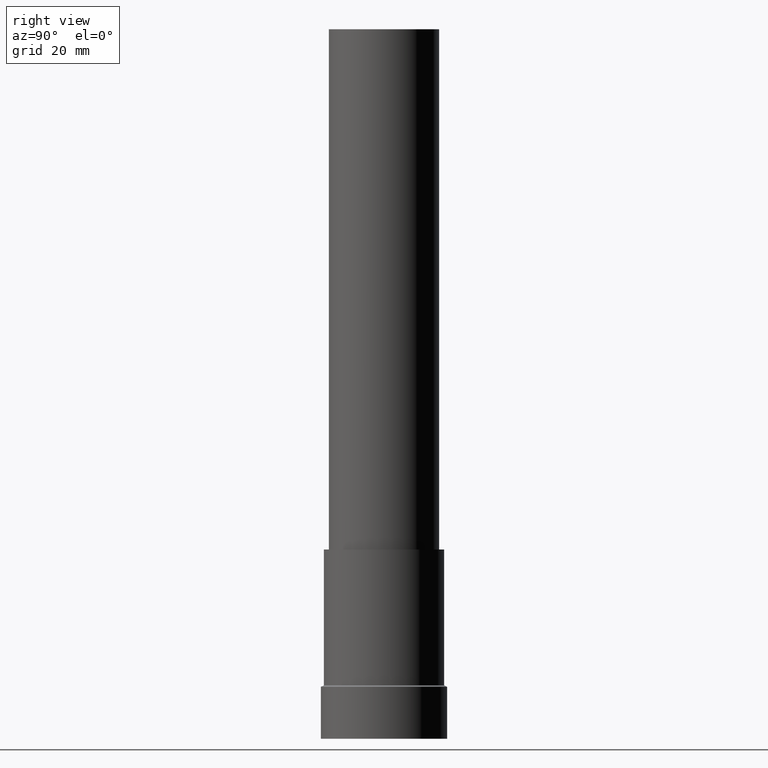
[diagram: clean part render]
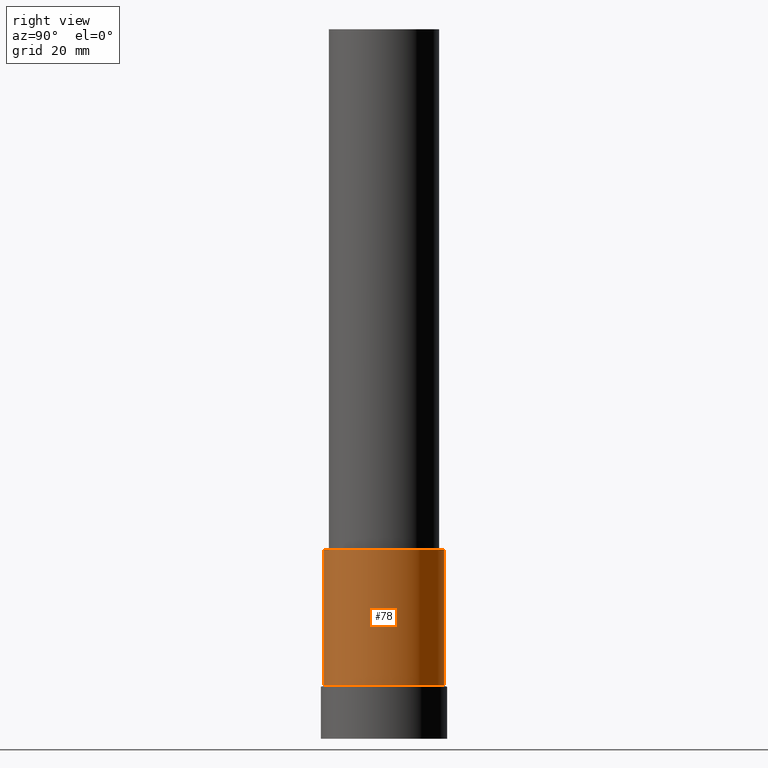
[diagram: same view with one face highlighted and labeled with its STEP entity id]
A machine part, right view. The second image highlights one B-rep face of the part: STEP entity #78.
In plain terms, the highlighted cylindrical surface (bore or boss wall) has radius 15.25 mm, axis along (0, 0, -1).
Its self-contained STEP definition (entity closure, byte-faithful):
#78=ADVANCED_FACE('',(#91,#92),#93,.T.);
#91=FACE_BOUND('',#110,.T.);
#92=FACE_BOUND('',#111,.T.);
#93=CYLINDRICAL_SURFACE('',#112,15.2499999999998);
#110=EDGE_LOOP('',(#135));
#111=EDGE_LOOP('',(#136));
#112=AXIS2_PLACEMENT_3D('',#137,#138,#139);
#135=ORIENTED_EDGE('',*,*,#157,.F.);
#136=ORIENTED_EDGE('',*,*,#156,.T.);
#137=CARTESIAN_POINT('',(-1.88398237049828E-015,-2.22297593676732E-018,30.7677670298079));
#138=DIRECTION('',(6.12323399573677E-017,7.22501550150502E-020,-1.0));
#139=DIRECTION('',(-4.83157677682371E-033,1.0,7.22501550150502E-020));
#156=EDGE_CURVE('',#164,#164,#165,.T.);
#157=EDGE_CURVE('',#166,#166,#167,.T.);
#164=VERTEX_POINT('',#176);
#165=CIRCLE('',#177,15.2499999999999);
#166=VERTEX_POINT('',#178);
#167=CIRCLE('',#179,15.2499999999997);
#176=CARTESIAN_POINT('',(-8.2881242304416E-016,15.2499999999999,13.535534059636));
#177=AXIS2_PLACEMENT_3D('',#190,#191,#192);
#178=CARTESIAN_POINT('',(-2.93915231795241E-015,15.2499999999997,47.9999999999798));
#179=AXIS2_PLACEMENT_3D('',#193,#194,#195);
#190=CARTESIAN_POINT('',(-8.2881242304416E-016,-9.77944433755488E-019,13.535534059636));
#191=DIRECTION('',(-6.12323399573677E-017,-7.22501550150497E-020,1.0));
#192=DIRECTION('',(-4.83157677682367E-033,1.0,7.22501550150497E-020));
#193=CARTESIAN_POINT('',(-2.93915231795241E-015,-3.46800743977915E-018,47.9999999999798));
#194=DIRECTION('',(-6.12323399573677E-017,-7.22501550150508E-020,1.0));
#195=DIRECTION('',(-4.83157677682374E-033,1.0,7.22501550150508E-020));